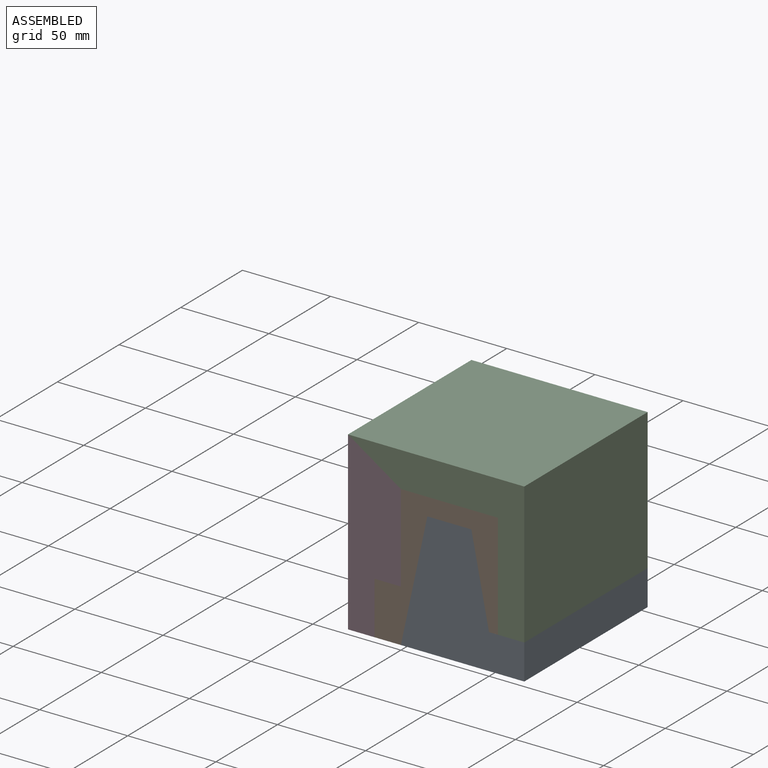
[diagram: assembled view]
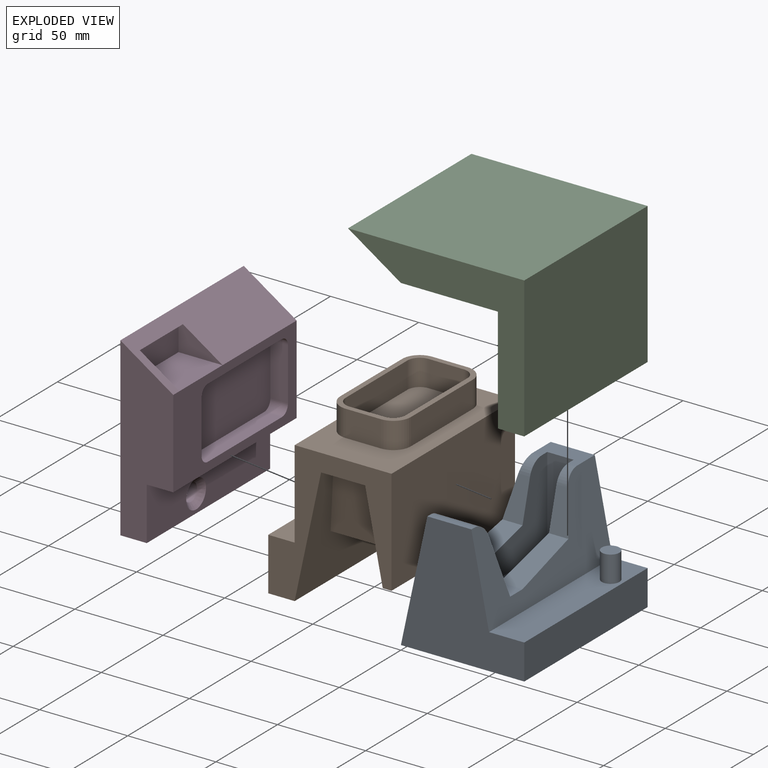
[diagram: exploded view]
GUIDED TOUR — MATED ASSEMBLY (Onshape document e63145086b575f710465f678, AutoMate assembly e63145086b575f710465f678_f227d808b7d8d06295546075_6c64f48d10dcde75da59b10a_default)

This assembly has 4 components, labeled P0..P3 below (a component is one placed occurrence of a part; the same part can appear more than once), held together by 7 mates. A mate is a constraint between two components; its type names the relative motion it leaves free:
  PLANAR — leaves sliding in the plane through the listed point (normal = the listed direction) and rotation about that normal free,
  SLIDER — leaves translation along the listed axis free.
Axis/direction vectors are unit vectors and 'through' points are millimeter coordinates, both in the assembly's world frame.

MATES
  1. SLIDER "Slider 2": P3 <-> P1, axis (-1.000, 0.000, 0.000) through (-30.00, 40.00, 10.00) mm
  2. PLANAR "Planar 5": P1 <-> P3, direction (-1.000, 0.000, 0.000) through (0.00, 50.00, 55.00) mm
  3. PLANAR "Planar 3": P1 <-> P0, direction (0.978, 0.000, -0.210) through (0.00, 50.00, 0.00) mm
  4. SLIDER "Slider 1": P2 <-> P0, axis (0.000, 0.000, -1.000) through (63.00, 80.00, 20.00) mm
  5. PLANAR "Planar 4": P0 <-> P2, direction (0.000, 0.000, 1.000) through (50.00, 50.00, 20.00) mm
  6. PLANAR "Planar 1": P1 <-> P0, direction (0.000, 0.000, -1.000) through (27.50, 91.45, 70.00) mm
  7. PLANAR "Planar 2": P1 <-> P0, direction (0.000, -1.000, 0.000) through (15.00, 0.00, 70.00) mm

ASSEMBLY ORDER
  1. P0 — the base component [order heuristic]
  2. P1 [order heuristic]
  3. P2 [order heuristic]
  4. P3 [order heuristic]
Order-tag legend:
  [order heuristic] — this assembly is geometrically interlocked (no collision-free removal order exists), so components are listed in mate-graph order; insertion feasibility is not verified.

Of the 4 components, 1 carries the full construction recipe — the FeatureScript program that regenerates the part's solid from scratch; the rest are supplied as boundary geometry only.
Each toured component is shown spotlighted twice — in the assembled view, then in the exploded view, where a leader line traces a displaced component back to its assembled socket (saturated green if recipe-attached, orange if geometry-only; every other component desaturated gray) — followed by its recipe or geometry summary and the mates that hold it.
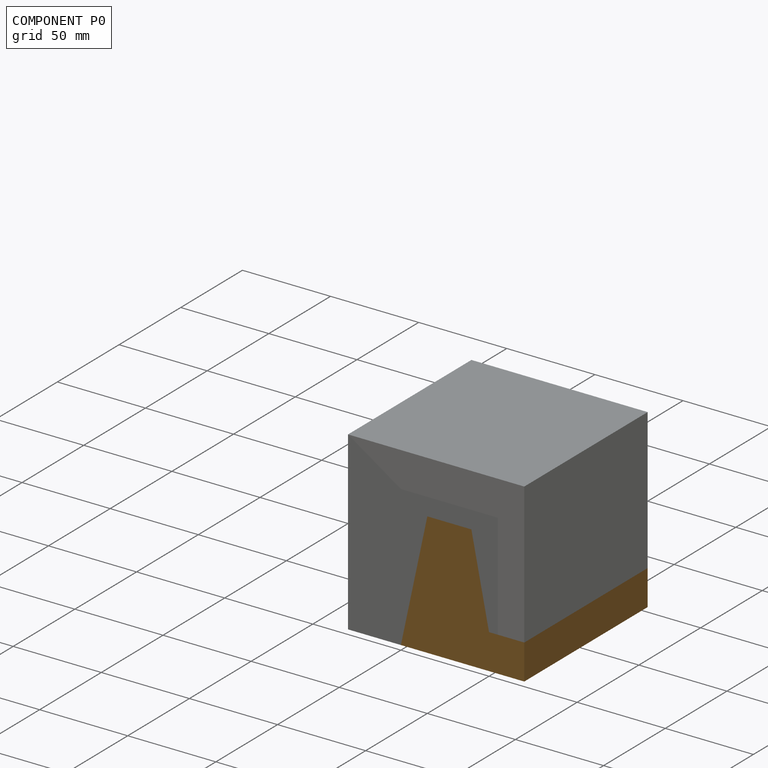
[diagram: component P0 — assembled]
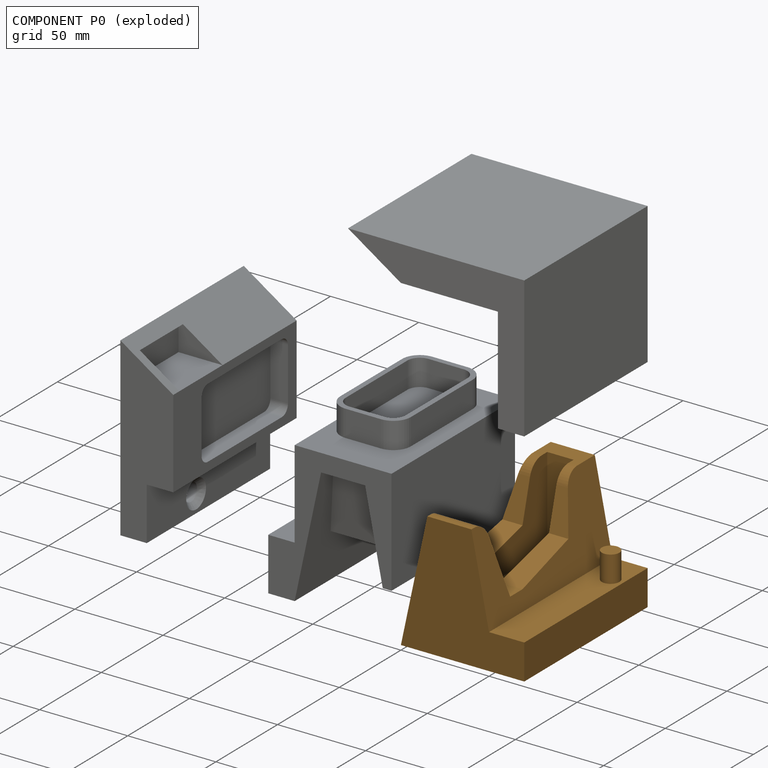
[diagram: component P0 — exploded]
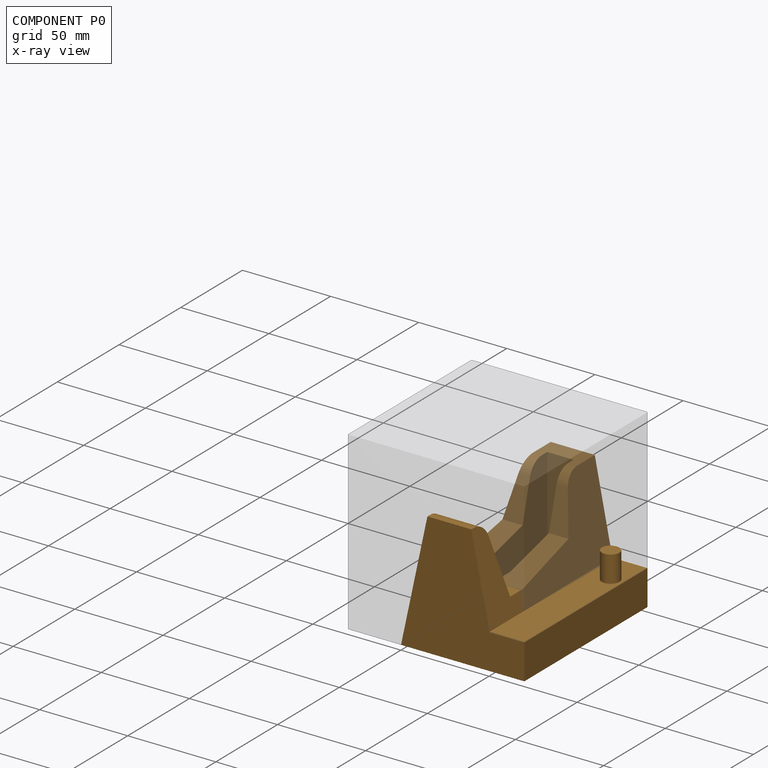
[diagram: component P0 — x-ray view]
COMPONENT P0 — geometry summary (no construction recipe available for this part):
  bounding box: 100.0 x 70.0 x 70.0 mm
  B-rep topology: 1 solid, 25 faces, 130 edges
  volume: 222912 mm^3 (45% of its bounding box)
Held by: PLANAR mate "Planar 3" to P1; SLIDER mate "Slider 1" to P2; PLANAR mate "Planar 4" to P2; PLANAR mate "Planar 1" to P1; PLANAR mate "Planar 2" to P1.
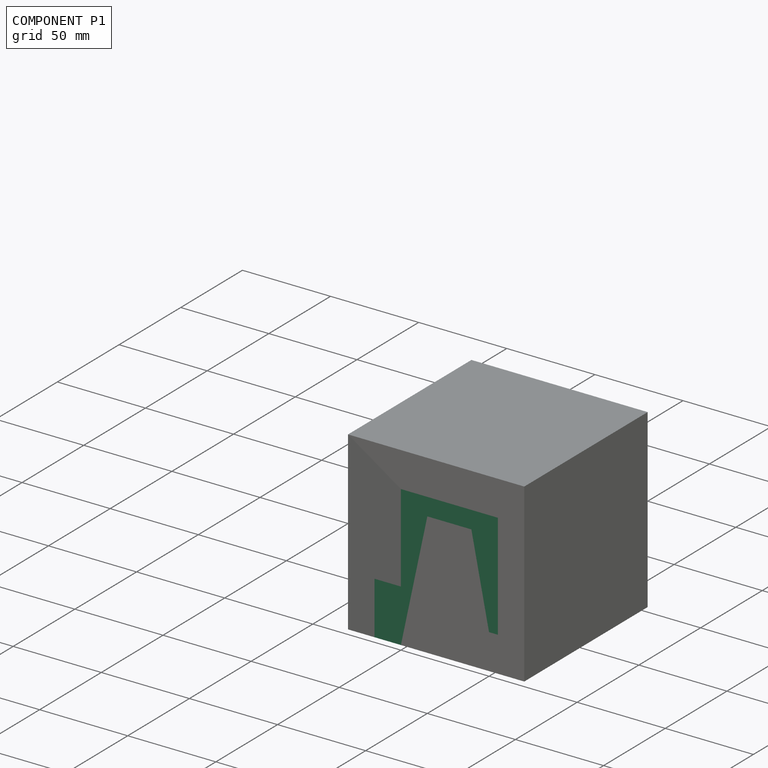
[diagram: component P1 — assembled]
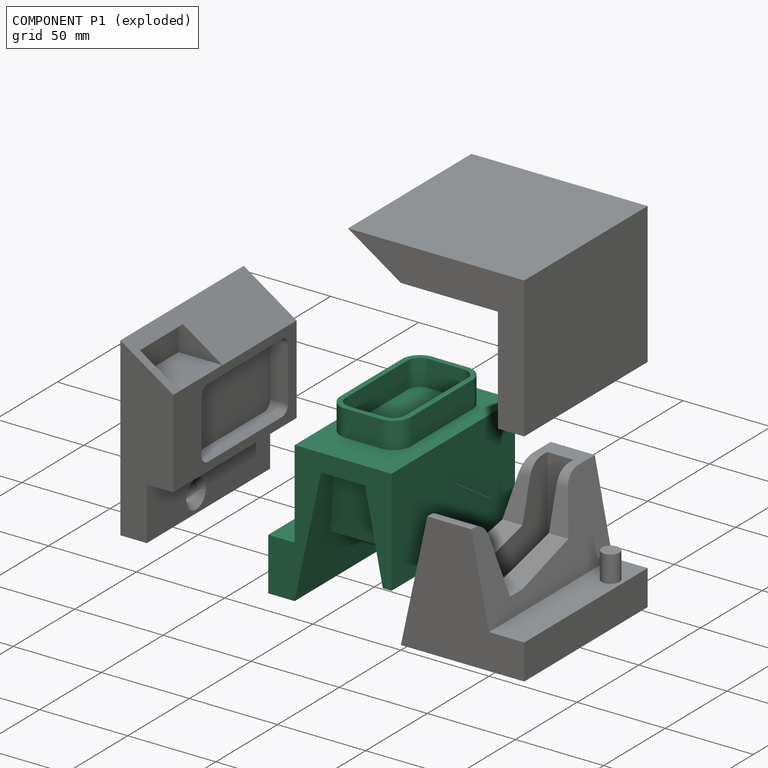
[diagram: component P1 — exploded]
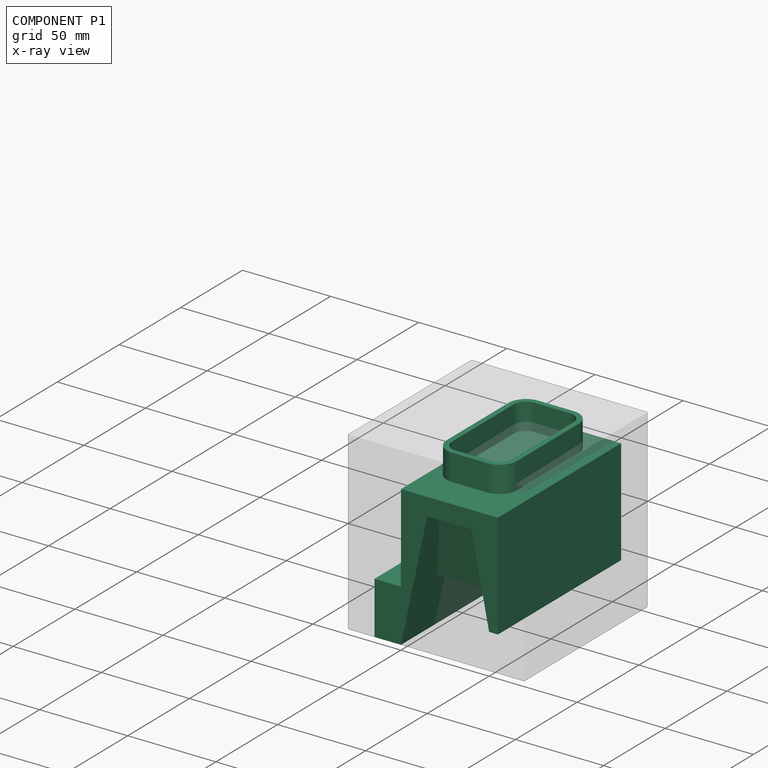
[diagram: component P1 — x-ray view]
COMPONENT P1 — recipe-attached (CADFS 00948945, mesh-verified: the recipe's output STEP matches this component's geometry to below the mesh-comparison resolution (tessellation chordal tolerance ~0.243 mm)).
Held by: SLIDER mate "Slider 2" to P3; PLANAR mate "Planar 5" to P3; PLANAR mate "Planar 3" to P0; PLANAR mate "Planar 1" to P0; PLANAR mate "Planar 2" to P0.
Construction recipe (FeatureScript — the CAD program that rebuilds this solid; sketch coordinates are in the units given by the * unit suffixes, e.g. mm):

FeatureScript 1511;
import(path : "onshape/std/geometry.fs", version : "1511.0");
import(path : "onshape/std/common.fs", version : "1511.0");
const mm = millimeter;
const VERTEX = EntityType.VERTEX;
const EDGE = EntityType.EDGE;
const FACE = EntityType.FACE;
const BODY = EntityType.BODY;
function v(x, y){return vector(x, y);}
function OD(order){return orderDisambiguation(order);}
function OSD(set){return originalSetDisambiguation(set);}
function TD(topology){return topologyDisambiguation(topology);}
function TDD(query){return trueDependencyDisambiguation(query);}
function sQuery(a, b, c) {return sketchEntityQuery(a, b, c);}

annotation { "Feature Type Name" : "Feature", "Feature Type Description" : "" }
export const myFeature = defineFeature(function(context is Context, id is Id, definition is map)
    precondition{}
    {
        {
            var Q0;
            Q0=qCreatedBy(makeId("Front.planeOp"),FACE);
            var sketch = newSketch(context, id + "F0", { "sketchPlane" : qUnion([Q0])});
            skLineSegment(sketch, "E0", {"start": v(0, 80) * mm, "end": v(0, 0) * mm});
            skLineSegment(sketch, "E1", {"start": v(0, 0) * mm, "end": v(55, 0) * mm});
            skLineSegment(sketch, "E2", {"start": v(55, 0) * mm, "end": v(55, 60) * mm});
            skLineSegment(sketch, "E3", {"start": v(55, 60) * mm, "end": v(50, 60) * mm});
            skLineSegment(sketch, "E4", {"start": v(50, 60) * mm, "end": v(40, 10) * mm});
            skLineSegment(sketch, "E5", {"start": v(40, 10) * mm, "end": v(15, 10) * mm});
            skLineSegment(sketch, "E6", {"start": v(15, 10) * mm, "end": v(0, 80) * mm});
            skSolve(sketch);
        }
        {
            var Q0;
            Q0 = qSketchRegion(id + "F0", true);
            extrude(context, id + "F1", {"entities" : qUnion([Q0]), "oppositeDirection" : true, "depth" : 100 * mm, "offsetDistance" : 25 * mm});
        }
        {
            var Q0;
            Q0=makeQuery(id+"F1.opExtrude","SWEPT_FACE",FACE,{"disambiguationData":[OSD([sQuery(id+"F0.wireOp",EDGE,"E2")])]});
            cPlane(context, id + "F2", {"entities" : qUnion([Q0]), "cplaneType" : CPlaneType.OFFSET, "offset" : 27.5 * mm, "oppositeDirection" : true, "width" : 150 * mm, "height" : 150 * mm});
        }
        {
            var Q0;
            Q0=qCreatedBy(id+"F2.planeOp",FACE);
            var sketch = newSketch(context, id + "F3", { "sketchPlane" : qUnion([Q0])});
            skLineSegment(sketch, "E7", {"start": v(21.96, 10) * mm, "end": v(90, 10) * mm});
            skLineSegment(sketch, "E8", {"start": v(90, 10) * mm, "end": v(80, 50) * mm});
            skLineSegment(sketch, "E9", {"start": v(80, 50) * mm, "end": v(70, 50) * mm});
            skLineSegment(sketch, "E10", {"start": v(70, 50) * mm, "end": v(30, 40) * mm});
            skLineSegment(sketch, "E11", {"start": v(30, 40) * mm, "end": v(21.96, 10) * mm});
            skLineSegment(sketch, "E12", {"start": v(30, 40) * mm, "end": v(30, 10) * mm, "construction": true});
            skSolve(sketch);
        }
        {
            var Q0;
            Q0 = qSketchRegion(id + "F3", true);
            extrude(context, id + "F4", {"entities" : qUnion([Q0]), "operationType" : NewBodyOperationType.ADD, "endBound" : BoundingType.UP_TO_NEXT, "depth" : 25 * mm, "offsetDistance" : 25 * mm, "hasSecondDirection" : true, "secondDirectionBound" : SecondDirectionBoundingType.UP_TO_NEXT, "secondDirectionOppositeDirection" : true, "secondDirectionDepth" : 25 * mm});
        }
        {
            var Q0;
            Q0=qCreatedBy(id+"F2.planeOp",FACE);
            var sketch = newSketch(context, id + "F5", { "sketchPlane" : qUnion([Q0])});
            skArc(sketch, "E13", {"start": v(40, 0) * mm, "mid": v(61.21, 51.21) * mm, "end": v(10, 30) * mm});
            skLineSegment(sketch, "E14", {"start": v(10, 30) * mm, "end": v(10, 0) * mm});
            skLineSegment(sketch, "E15", {"start": v(10, 0) * mm, "end": v(40, 0) * mm});
            skSolve(sketch);
        }
        {
            var Q0;
            Q0 = qSketchRegion(id + "F5", true);
            extrude(context, id + "F6", {"entities" : qUnion([Q0]), "operationType" : NewBodyOperationType.ADD, "depth" : 7.5 * mm, "offsetDistance" : 25 * mm, "hasSecondDirection" : true, "secondDirectionOppositeDirection" : true, "secondDirectionDepth" : 7.5 * mm});
        }
        {
            var Q0;
            Q0=makeQuery(id+"F1.opExtrude","CAP_FACE",FACE,{"disambiguationData":[OSD([sQuery(id+"F0.wireOp",EDGE,"E0"),sQuery(id+"F0.wireOp",EDGE,"E1"),sQuery(id+"F0.wireOp",EDGE,"E2"),sQuery(id+"F0.wireOp",EDGE,"E3"),sQuery(id+"F0.wireOp",EDGE,"E4"),sQuery(id+"F0.wireOp",EDGE,"E5"),sQuery(id+"F0.wireOp",EDGE,"E6")])],"isStart":true});
            var sketch = newSketch(context, id + "F7", { "sketchPlane" : qUnion([Q0])});
            skLineSegment(sketch, "E16.bottom", {"start": v(0, 80) * mm, "end": v(-15, 80) * mm});
            skLineSegment(sketch, "E16.top", {"start": v(0, 50) * mm, "end": v(-15, 50) * mm});
            skLineSegment(sketch, "E16.left", {"start": v(0, 80) * mm, "end": v(0, 50) * mm});
            skLineSegment(sketch, "E16.right", {"start": v(-15, 80) * mm, "end": v(-15, 50) * mm});
            skSolve(sketch);
        }
        {
            var Q0;
            Q0 = qSketchRegion(id + "F7", true);
            extrude(context, id + "F8", {"entities" : qUnion([Q0]), "operationType" : NewBodyOperationType.ADD, "oppositeDirection" : true, "depth" : 100 * mm, "offsetDistance" : 25 * mm});
        }
        {
            var Q0;
            Q0=makeQuery(id+"F8.opExtrude","SWEPT_FACE",FACE,{"disambiguationData":[OSD([sQuery(id+"F7.wireOp",EDGE,"E16.right")])]});
            var sketch = newSketch(context, id + "F9", { "sketchPlane" : qUnion([Q0])});
            skCircle(sketch, "E17", {"center": v(-60, 70) * mm, "radius": 5 * mm});
            skSolve(sketch);
        }
        {
            var Q0;
            Q0 = qSketchRegion(id + "F9", true);
            extrude(context, id + "F10", {"entities" : qUnion([Q0]), "operationType" : NewBodyOperationType.ADD, "depth" : 15 * mm, "offsetDistance" : 25 * mm});
        }
        {
            var Q0;
            Q0=makeQuery(id+"F1.opExtrude","SWEPT_FACE",FACE,{"disambiguationData":[OSD([sQuery(id+"F0.wireOp",EDGE,"E1")])]});
            var sketch = newSketch(context, id + "F11", { "sketchPlane" : qUnion([Q0])});
            skLineSegment(sketch, "E18.bottom", {"start": v(5, -80) * mm, "end": v(45, -80) * mm});
            skLineSegment(sketch, "E18.top", {"start": v(5, -10) * mm, "end": v(45, -10) * mm});
            skLineSegment(sketch, "E18.left", {"start": v(5, -80) * mm, "end": v(5, -10) * mm});
            skLineSegment(sketch, "E18.right", {"start": v(45, -80) * mm, "end": v(45, -10) * mm});
            skSolve(sketch);
        }
        {
            var Q0;
            Q0 = qSketchRegion(id + "F11", true);
            extrude(context, id + "F12", {"entities" : qUnion([Q0]), "operationType" : NewBodyOperationType.ADD, "depth" : 15 * mm, "offsetDistance" : 25 * mm});
        }
        {
            var Q0;
            Q0=makeQuery(id+"F12.opExtrude","SWEPT_EDGE",EDGE,{"disambiguationData":[OSD([sQuery(id+"F11.wireOp",EDGE,"E18.top"),sQuery(id+"F11.wireOp",EDGE,"E18.right")])]});
            var Q1;
            Q1=makeQuery(id+"F12.opExtrude","SWEPT_EDGE",EDGE,{"disambiguationData":[OSD([sQuery(id+"F11.wireOp",EDGE,"E18.top"),sQuery(id+"F11.wireOp",EDGE,"E18.left")])]});
            var Q2;
            Q2=makeQuery(id+"F12.opExtrude","SWEPT_EDGE",EDGE,{"disambiguationData":[OSD([sQuery(id+"F11.wireOp",EDGE,"E18.bottom"),sQuery(id+"F11.wireOp",EDGE,"E18.right")])]});
            var Q3;
            Q3=makeQuery(id+"F12.opExtrude","SWEPT_EDGE",EDGE,{"disambiguationData":[OSD([sQuery(id+"F11.wireOp",EDGE,"E18.bottom"),sQuery(id+"F11.wireOp",EDGE,"E18.left")])]});
            fillet(context, id + "F13", {"entities" : qUnion([Q0, Q1, Q2, Q3]), "radius" : 10 * mm, "tangentPropagation" : true, "allowEdgeOverflow" : false});
        }
        {
            var Q0;
            Q0=makeQuery(id+"F12.opExtrude","CAP_FACE",FACE,{"disambiguationData":[OSD([sQuery(id+"F11.wireOp",EDGE,"E18.bottom"),sQuery(id+"F11.wireOp",EDGE,"E18.top"),sQuery(id+"F11.wireOp",EDGE,"E18.left"),sQuery(id+"F11.wireOp",EDGE,"E18.right")])],"isStart":false});
            var sketch = newSketch(context, id + "F14", { "sketchPlane" : qUnion([Q0])});
            skArc(sketch, "E19.0", {"start": v(8, -70) * mm, "mid": v(10.05, -74.95) * mm, "end": v(15, -77) * mm});
            skLineSegment(sketch, "E19.1", {"start": v(15, -77) * mm, "end": v(35, -77) * mm});
            skLineSegment(sketch, "E19.2", {"start": v(8, -70) * mm, "end": v(8, -20) * mm});
            skArc(sketch, "E19.3", {"start": v(35, -77) * mm, "mid": v(39.95, -74.95) * mm, "end": v(42, -70) * mm});
            skArc(sketch, "E19.4", {"start": v(15, -13) * mm, "mid": v(10.05, -15.05) * mm, "end": v(8, -20) * mm});
            skLineSegment(sketch, "E19.5", {"start": v(15, -13) * mm, "end": v(35, -13) * mm});
            skArc(sketch, "E19.6", {"start": v(42, -20) * mm, "mid": v(39.95, -15.05) * mm, "end": v(35, -13) * mm});
            skLineSegment(sketch, "E19.7", {"start": v(42, -70) * mm, "end": v(42, -20) * mm});
            skSolve(sketch);
        }
        {
            var Q0;
            Q0 = qSketchRegion(id + "F14", true);
            extrude(context, id + "F15", {"entities" : qUnion([Q0]), "operationType" : NewBodyOperationType.REMOVE, "oppositeDirection" : true, "depth" : 15 * mm, "offsetDistance" : 25 * mm});
        }
    });
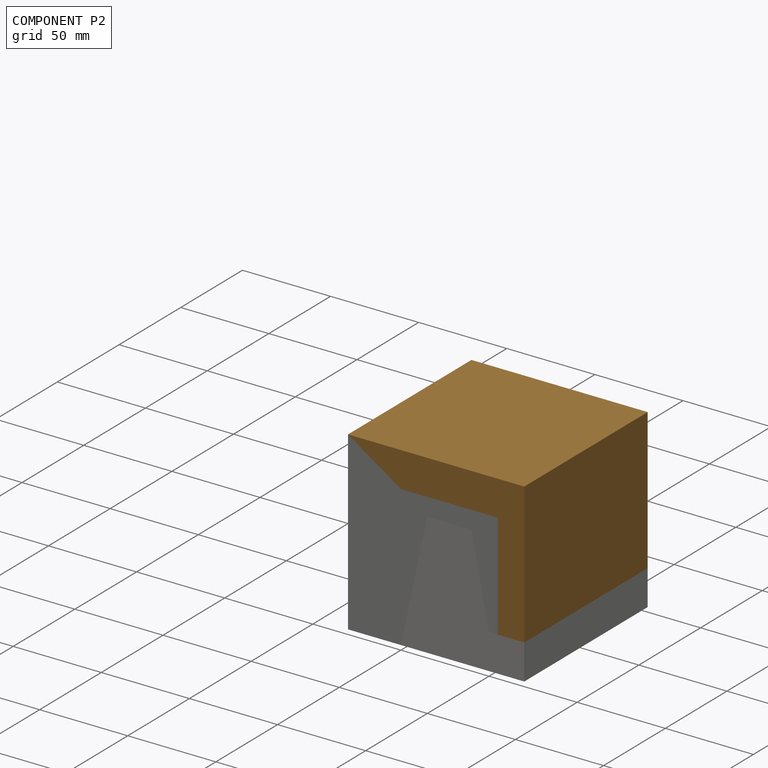
[diagram: component P2 — assembled]
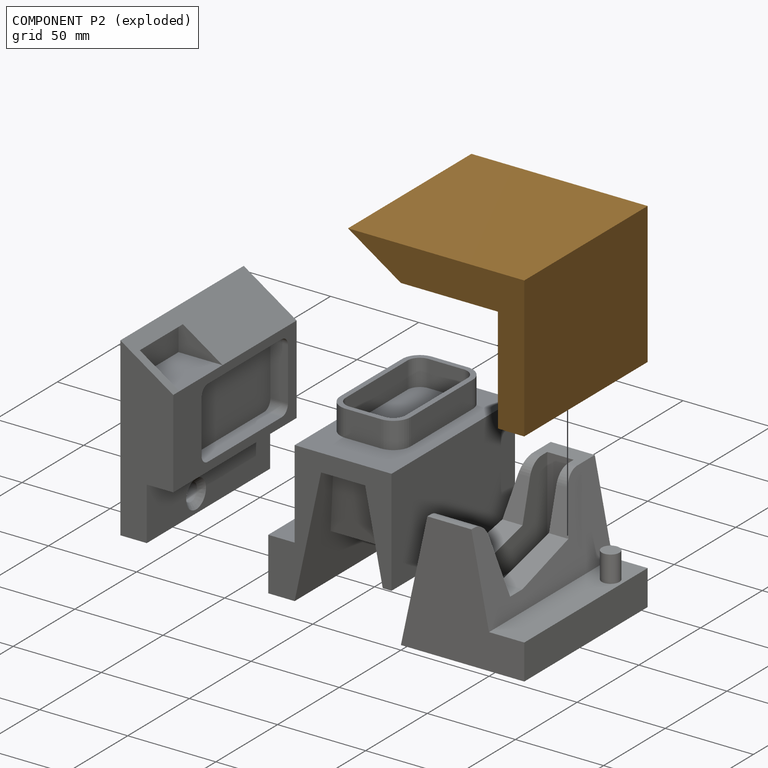
[diagram: component P2 — exploded]
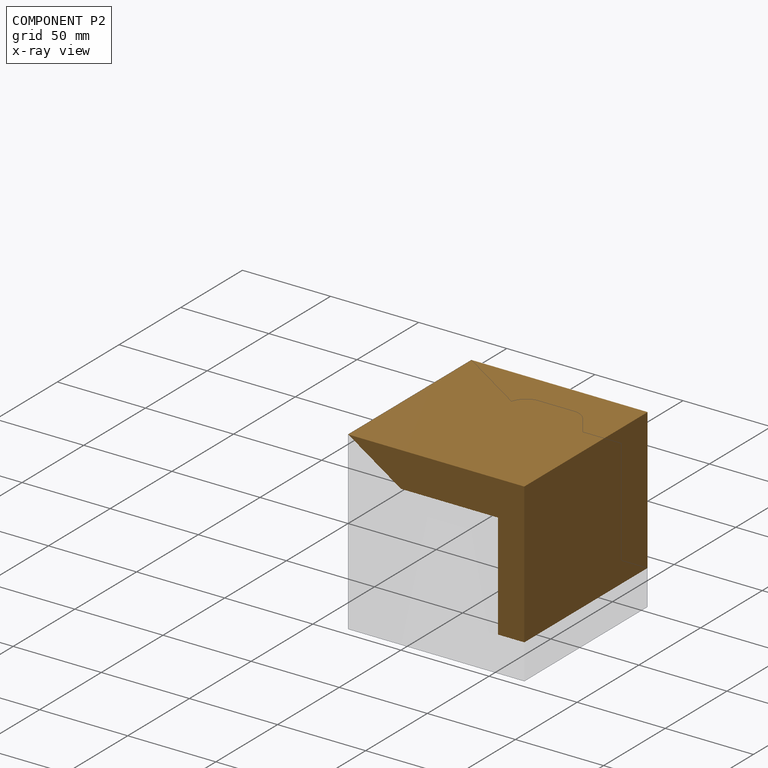
[diagram: component P2 — x-ray view]
COMPONENT P2 — geometry summary (no construction recipe available for this part):
  bounding box: 100.0 x 100.0 x 80.0 mm
  B-rep topology: 1 solid, 22 faces, 114 edges
  volume: 168716 mm^3 (21% of its bounding box)
Held by: SLIDER mate "Slider 1" to P0; PLANAR mate "Planar 4" to P0.
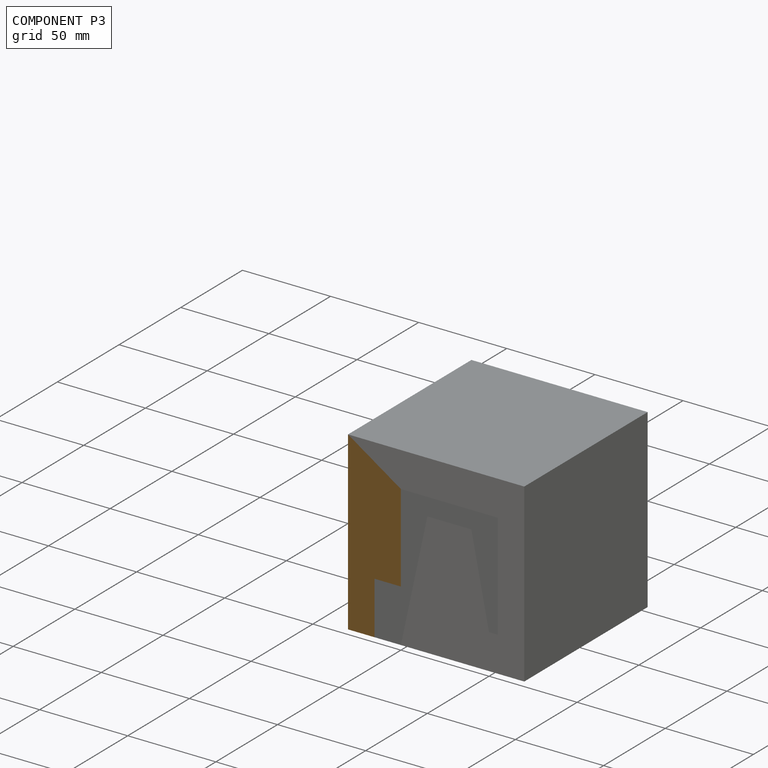
[diagram: component P3 — assembled]
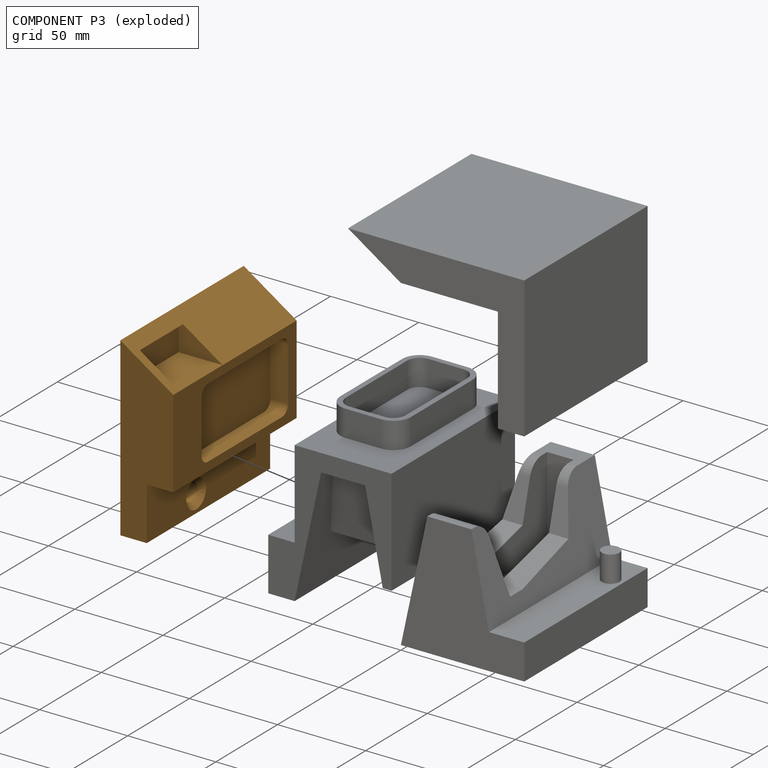
[diagram: component P3 — exploded]
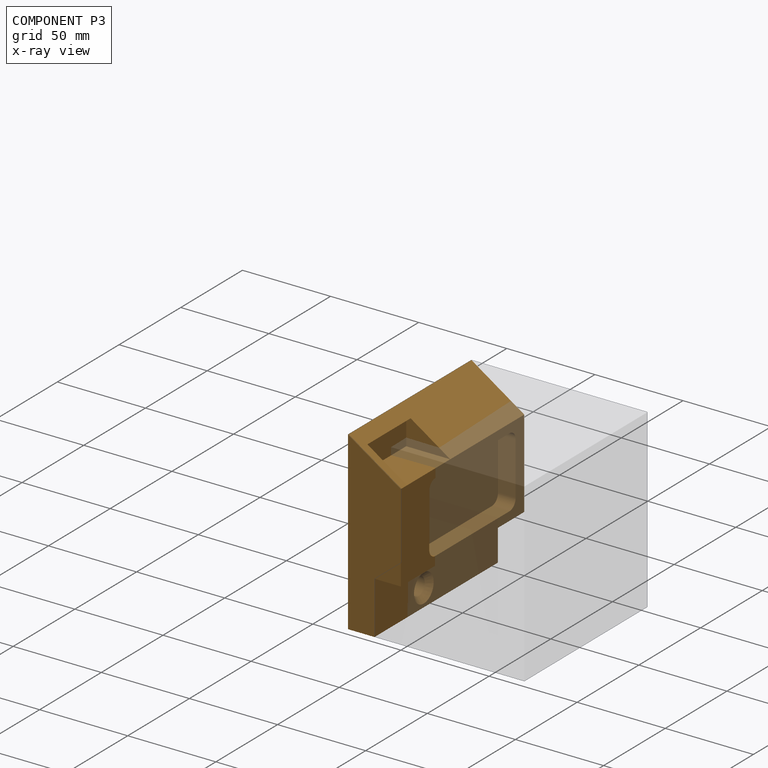
[diagram: component P3 — x-ray view]
COMPONENT P3 — geometry summary (no construction recipe available for this part):
  bounding box: 100.0 x 100.0 x 30.0 mm
  B-rep topology: 1 solid, 24 faces, 122 edges
  volume: 188648 mm^3 (63% of its bounding box)
Held by: SLIDER mate "Slider 2" to P1; PLANAR mate "Planar 5" to P1.
PROVENANCE & LICENSES
Assembly (occurrences, transforms, mates, per-part STEP geometry): AutoMate dataset, Zenodo record 7776208, CC0.
Construction recipes: CADFS (HuggingFace VladPyatov/CADFS, CC-BY-4.0, layered over the ABC dataset), FeatureScript reconstruction programs keyed by ABC model id.
Join: ABC meta listings map ABC model id -> Onshape documentId; within a shared document, parts are matched by geometric signature (bounding-box dims + volume at 0.1% relative tolerance, exact B-rep face/solid counts).
Verification: 1 of this assembly's 4 components carries a recipe attachment, and every attachment is mesh-verified: the CADFS STEP and the AutoMate member STEP were compared as meshes in their shared local frame (symmetric sampled-point-to-mesh distance); worst across the 1 attachment: below the mesh-comparison resolution (tessellation chordal tolerance ~0.243 mm) on a 162 mm part.
Renders: orthographic iso camera (az 35 / el 25); the floor grid conveys scale (grid pitch printed in each image; no ruler). In the exploded view each component is displaced by its stored offset vector: the offsets alone carry the explosion direction (mate normal/axis signs are not orientation cues and do not encode it), and separation distances are assigned per mate-chain, not proportionally to assembly-order depth.
